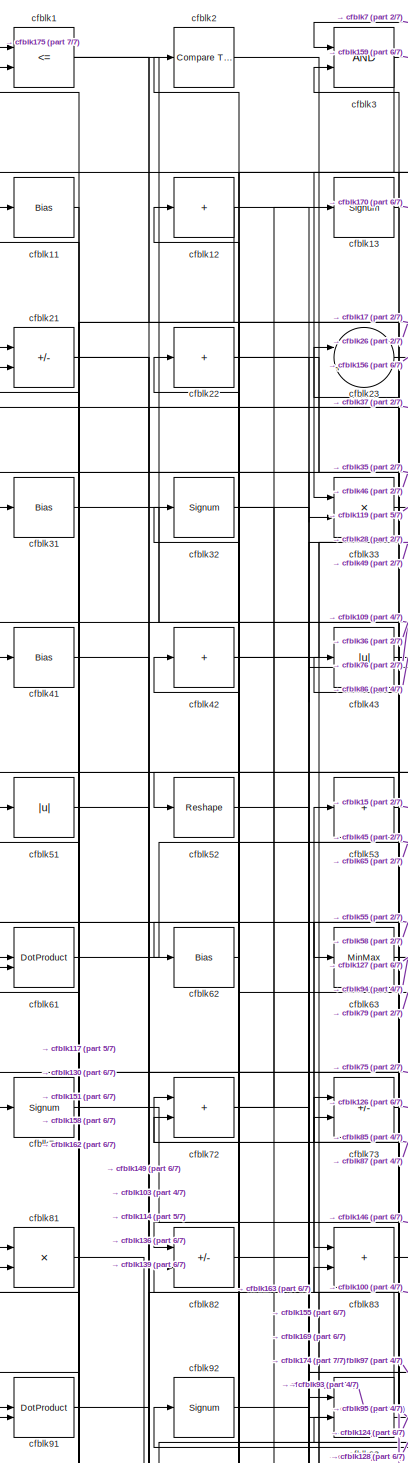
[diagram: root canvas - part 1/7, top left region]
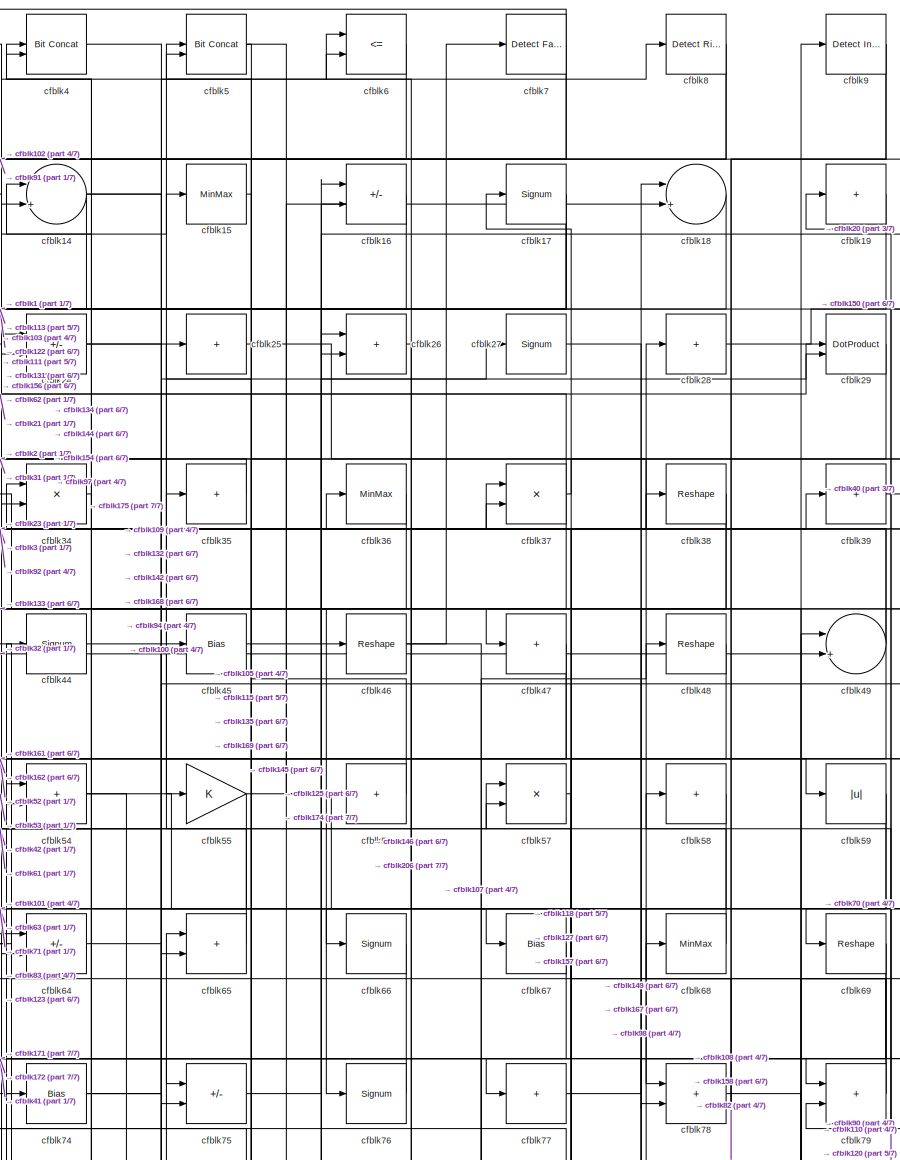
[diagram: root canvas - part 2/7, top center region]
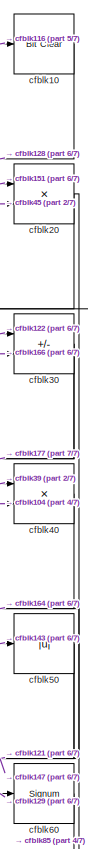
[diagram: root canvas - part 3/7, top right region]
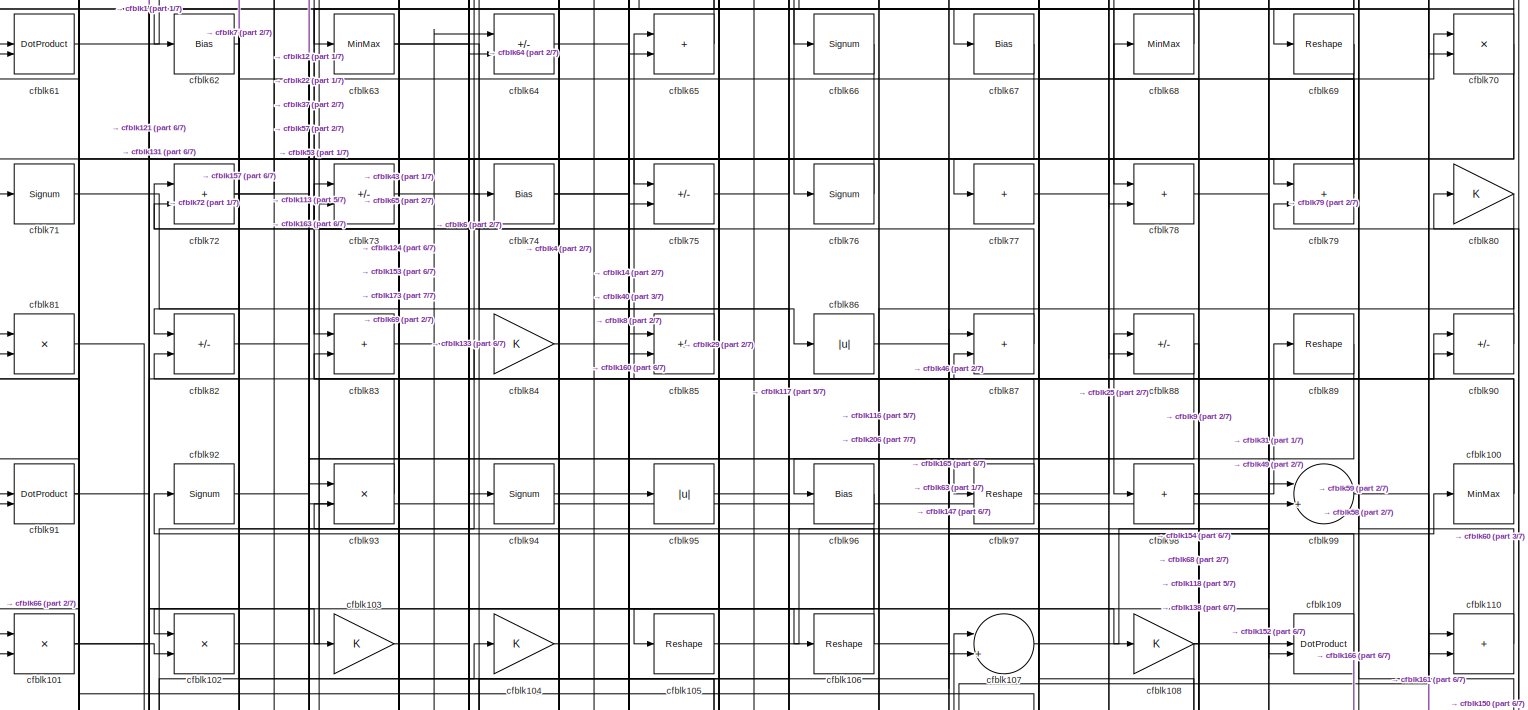
[diagram: root canvas - part 4/7, full width, middle band]
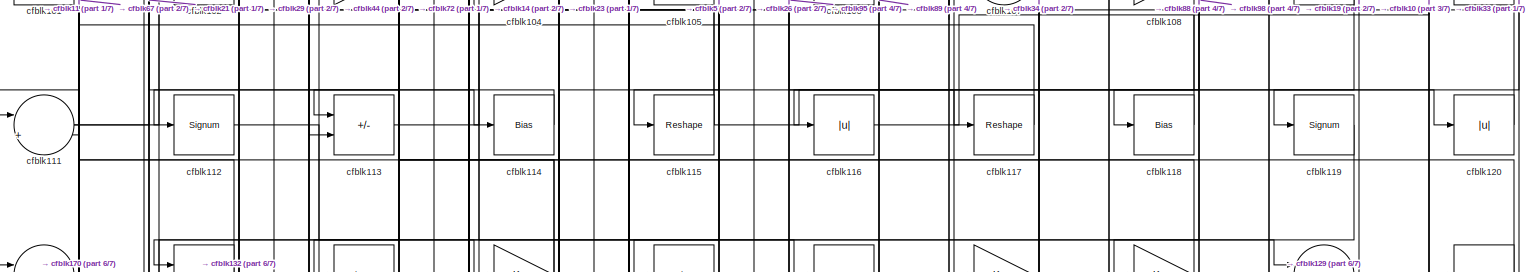
[diagram: root canvas - part 5/7, full width, middle band]
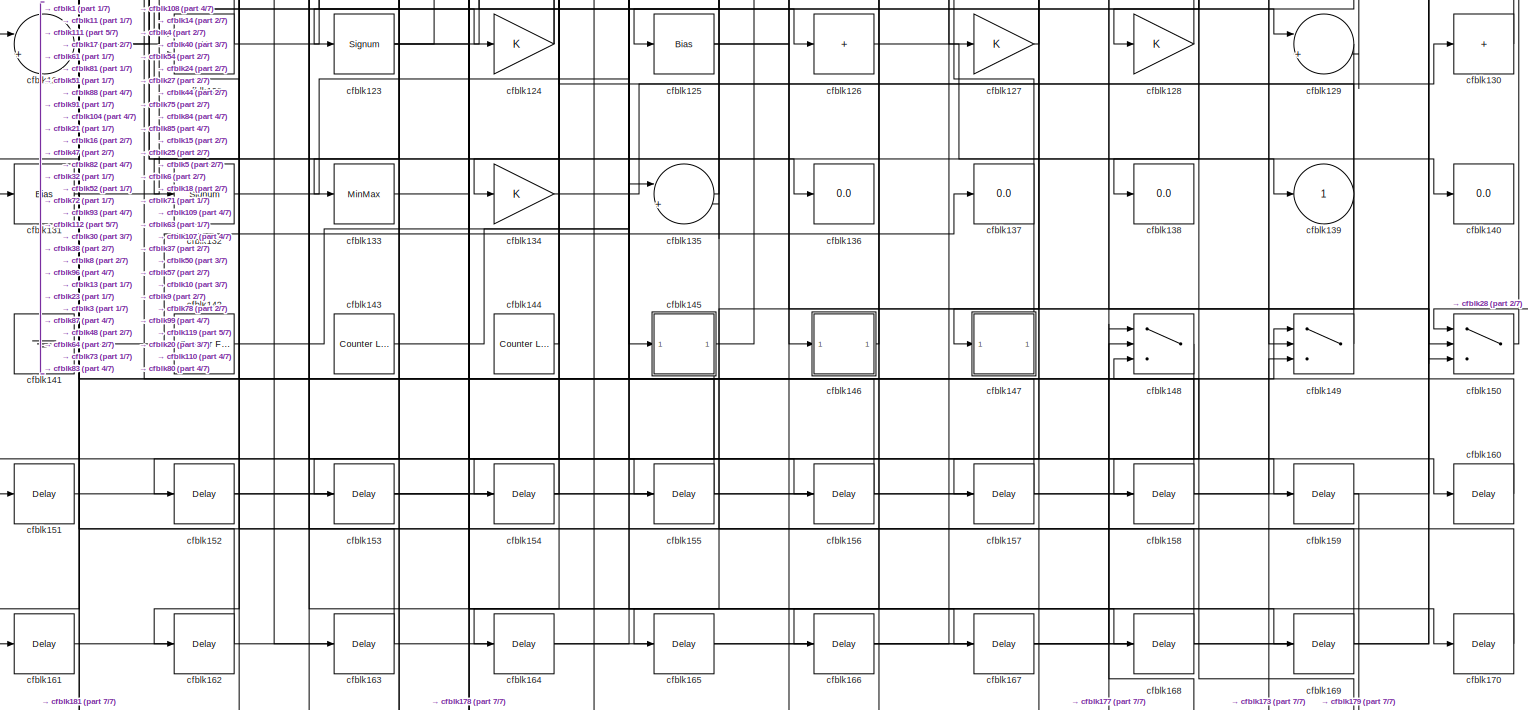
[diagram: root canvas - part 6/7, full width, bottom band]
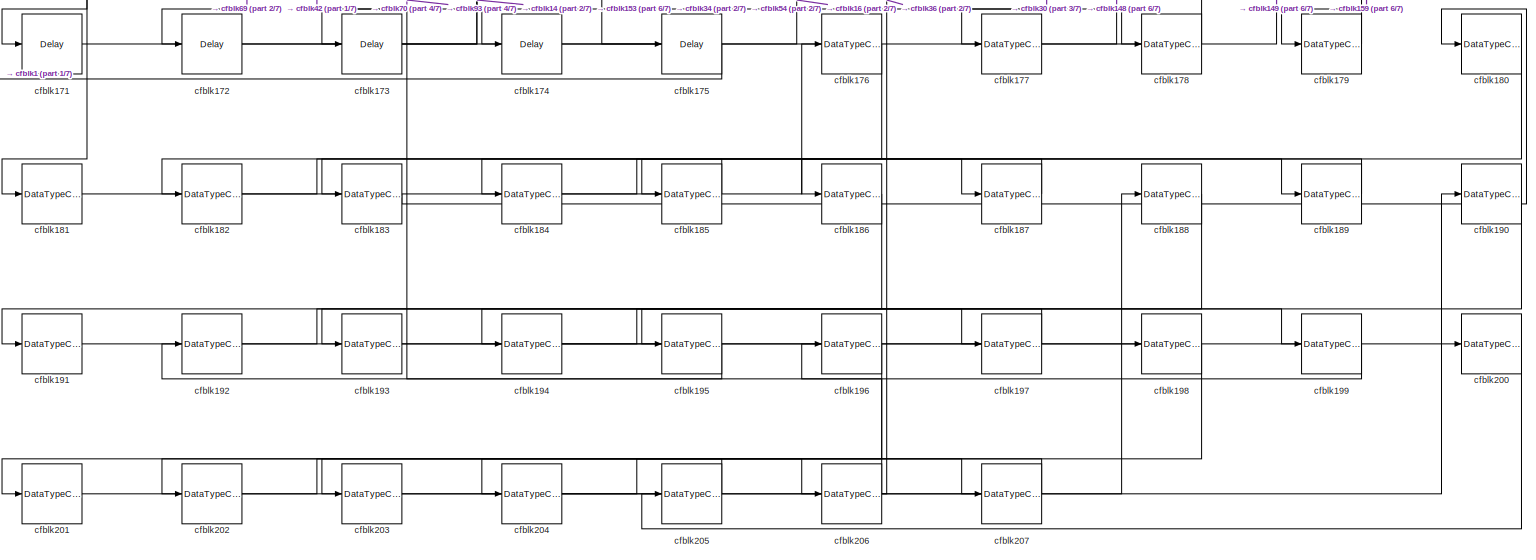
[diagram: root canvas - part 7/7, full width, bottom band]
MODEL slx_54df7357cd2f
KIND model
CONFIG AbsTol = auto
CONFIG EnableMultiTasking = off
CONFIG FixedStep = auto
CONFIG MaxStep = auto
CONFIG MinStep = auto
CONFIG RelTol = 1e-3
CONFIG SampleTimeConstraint = Unconstrained
CONFIG SolverName = VariableStepAuto
CONFIG StartTime = 0.0
CONFIG StopTime = 10.0
BLOCK [RelationalOperator] cfblk1
  InputSameDT = off
  Operator = <=
  OutDataTypeStr = boolean
BLOCK [Reference] cfblk10  REF=simulink/Logic and Bit
Operations/Bit Clear
  LibrarySourceBlock = hdlsllib/Logic and Bit\nOperations/Bit Clear
  SourceBlock = simulink/Logic and Bit\nOperations/Bit Clear
  SourceType = Bit Clear
BLOCK [MinMax] cfblk100
BLOCK [Product] cfblk101
  Inputs = */
  RndMeth = Zero
  SaturateOnIntegerOverflow = on
BLOCK [Product] cfblk102
  Inputs = */
  RndMeth = Zero
  SaturateOnIntegerOverflow = on
BLOCK [Gain] cfblk103
BLOCK [Gain] cfblk104
BLOCK [Reshape] cfblk105
BLOCK [Reshape] cfblk106
BLOCK [Sum] cfblk107
  Inputs = |++
BLOCK [Gain] cfblk108
BLOCK [DotProduct] cfblk109
  OutDataTypeStr = Inherit: Inherit via internal rule
BLOCK [Bias] cfblk11
  Bias = 0.0
  SaturateOnIntegerOverflow = off
BLOCK [Sum] cfblk110
  IconShape = rectangular
BLOCK [Sum] cfblk111
  Inputs = |++
BLOCK [Signum] cfblk112
BLOCK [Sum] cfblk113
  IconShape = rectangular
  Inputs = +-
BLOCK [Bias] cfblk114
  Bias = 0.0
  SaturateOnIntegerOverflow = off
BLOCK [Reshape] cfblk115
BLOCK [Abs] cfblk116
  SaturateOnIntegerOverflow = off
BLOCK [Reshape] cfblk117
BLOCK [Bias] cfblk118
  Bias = 0.0
  SaturateOnIntegerOverflow = off
BLOCK [Signum] cfblk119
BLOCK [Sum] cfblk12
  IconShape = rectangular
  Inputs = +
BLOCK [Abs] cfblk120
  SaturateOnIntegerOverflow = off
BLOCK [Sum] cfblk121
  Inputs = |++
BLOCK [Product] cfblk122
  Inputs = */
  RndMeth = Zero
  SaturateOnIntegerOverflow = on
BLOCK [Signum] cfblk123
BLOCK [Gain] cfblk124
BLOCK [Bias] cfblk125
  Bias = 0.0
  SaturateOnIntegerOverflow = off
BLOCK [Sum] cfblk126
  IconShape = rectangular
  Inputs = +
BLOCK [Gain] cfblk127
BLOCK [Gain] cfblk128
BLOCK [Sum] cfblk129
  Inputs = |++
BLOCK [Signum] cfblk13
BLOCK [Sum] cfblk130
  IconShape = rectangular
  Inputs = +
BLOCK [Bias] cfblk131
  Bias = 0.0
  SaturateOnIntegerOverflow = off
BLOCK [Signum] cfblk132
BLOCK [MinMax] cfblk133
BLOCK [Gain] cfblk134
BLOCK [Sum] cfblk135
  Inputs = |++
BLOCK [Display] cfblk136
  Decimation = 1
BLOCK [Display] cfblk137
  Decimation = 1
BLOCK [Display] cfblk138
  Decimation = 1
BLOCK [Outport] cfblk139
  VectorParamsAs1DForOutWhenUnconnected = off
BLOCK [Sum] cfblk14
  Inputs = |++
BLOCK [Display] cfblk140
  Decimation = 1
BLOCK [Ground] cfblk141
BLOCK [Reference] cfblk142  REF=hdlsllib/Sources/Counter
Free-Running
  SourceBlock = hdlsllib/Sources/Counter\nFree-Running
  SourceType = Counter Free-Running
BLOCK [Reference] cfblk143  REF=hdlsllib/Sources/Counter
Limited
  SourceBlock = hdlsllib/Sources/Counter\nLimited
  SourceType = Counter Limited
BLOCK [Reference] cfblk144  REF=hdlsllib/Sources/Counter
Limited
  SourceBlock = hdlsllib/Sources/Counter\nLimited
  SourceType = Counter Limited
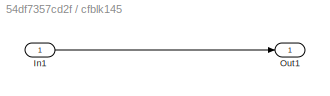
BLOCK [SubSystem] cfblk145
  LibrarySourceBlock = hdlsllib/Ports &\nSubsystems/Subsystem
BLOCK [Inport] cfblk145/In1
BLOCK [Outport] cfblk145/Out1
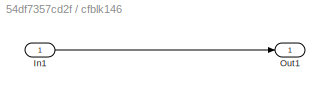
BLOCK [SubSystem] cfblk146
  LibrarySourceBlock = hdlsllib/Ports &\nSubsystems/Subsystem
BLOCK [Inport] cfblk146/In1
BLOCK [Outport] cfblk146/Out1
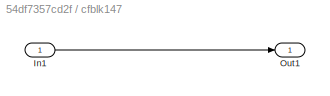
BLOCK [SubSystem] cfblk147
  LibrarySourceBlock = hdlsllib/Ports &\nSubsystems/Subsystem
BLOCK [Inport] cfblk147/In1
BLOCK [Outport] cfblk147/Out1
BLOCK [Switch] cfblk148
  InputSameDT = off
  SaturateOnIntegerOverflow = off
BLOCK [Switch] cfblk149
  InputSameDT = off
  SaturateOnIntegerOverflow = off
BLOCK [MinMax] cfblk15
BLOCK [Switch] cfblk150
  InputSameDT = off
  SaturateOnIntegerOverflow = off
BLOCK [Delay] cfblk151
  InputPortMap = u0
  SampleTime = 1
BLOCK [Delay] cfblk152
  InputPortMap = u0
  SampleTime = 1
BLOCK [Delay] cfblk153
  InputPortMap = u0
  SampleTime = 1
BLOCK [Delay] cfblk154
  InputPortMap = u0
  SampleTime = 1
BLOCK [Delay] cfblk155
  InputPortMap = u0
  SampleTime = 1
BLOCK [Delay] cfblk156
  InputPortMap = u0
  SampleTime = 1
BLOCK [Delay] cfblk157
  InputPortMap = u0
  SampleTime = 1
BLOCK [Delay] cfblk158
  InputPortMap = u0
  SampleTime = 1
BLOCK [Delay] cfblk159
  InputPortMap = u0
  SampleTime = 1
BLOCK [Sum] cfblk16
  IconShape = rectangular
  Inputs = +-
BLOCK [Delay] cfblk160
  InputPortMap = u0
  SampleTime = 1
BLOCK [Delay] cfblk161
  InputPortMap = u0
  SampleTime = 1
BLOCK [Delay] cfblk162
  InputPortMap = u0
  SampleTime = 1
BLOCK [Delay] cfblk163
  InputPortMap = u0
  SampleTime = 1
BLOCK [Delay] cfblk164
  InputPortMap = u0
  SampleTime = 1
BLOCK [Delay] cfblk165
  InputPortMap = u0
  SampleTime = 1
BLOCK [Delay] cfblk166
  InputPortMap = u0
  SampleTime = 1
BLOCK [Delay] cfblk167
  InputPortMap = u0
  SampleTime = 1
BLOCK [Delay] cfblk168
  InputPortMap = u0
  SampleTime = 1
BLOCK [Delay] cfblk169
  InputPortMap = u0
  SampleTime = 1
BLOCK [Signum] cfblk17
BLOCK [Delay] cfblk170
  InputPortMap = u0
  SampleTime = 1
BLOCK [Delay] cfblk171
  InputPortMap = u0
  SampleTime = 1
BLOCK [Delay] cfblk172
  InputPortMap = u0
  SampleTime = 1
BLOCK [Delay] cfblk173
  InputPortMap = u0
  SampleTime = 1
BLOCK [Delay] cfblk174
  InputPortMap = u0
  SampleTime = 1
BLOCK [Delay] cfblk175
  InputPortMap = u0
  SampleTime = 1
BLOCK [DataTypeConversion] cfblk176
  RndMeth = Floor
  SaturateOnIntegerOverflow = off
BLOCK [DataTypeConversion] cfblk177
  OutDataTypeStr = uint8
  RndMeth = Floor
  SaturateOnIntegerOverflow = off
BLOCK [DataTypeConversion] cfblk178
  OutDataTypeStr = uint8
  RndMeth = Floor
  SaturateOnIntegerOverflow = off
BLOCK [DataTypeConversion] cfblk179
  OutDataTypeStr = uint8
  RndMeth = Floor
  SaturateOnIntegerOverflow = off
BLOCK [Sum] cfblk18
  Inputs = |++
BLOCK [DataTypeConversion] cfblk180
  RndMeth = Floor
  SaturateOnIntegerOverflow = off
BLOCK [DataTypeConversion] cfblk181
  OutDataTypeStr = uint8
  RndMeth = Floor
  SaturateOnIntegerOverflow = off
BLOCK [DataTypeConversion] cfblk182
  RndMeth = Floor
  SaturateOnIntegerOverflow = off
BLOCK [DataTypeConversion] cfblk183
  OutDataTypeStr = uint8
  RndMeth = Floor
  SaturateOnIntegerOverflow = off
BLOCK [DataTypeConversion] cfblk184
  RndMeth = Floor
  SaturateOnIntegerOverflow = off
BLOCK [DataTypeConversion] cfblk185
  OutDataTypeStr = uint8
  RndMeth = Floor
  SaturateOnIntegerOverflow = off
BLOCK [DataTypeConversion] cfblk186
  RndMeth = Floor
  SaturateOnIntegerOverflow = off
BLOCK [DataTypeConversion] cfblk187
  OutDataTypeStr = uint8
  RndMeth = Floor
  SaturateOnIntegerOverflow = off
BLOCK [DataTypeConversion] cfblk188
  RndMeth = Floor
  SaturateOnIntegerOverflow = off
BLOCK [DataTypeConversion] cfblk189
  OutDataTypeStr = uint8
  RndMeth = Floor
  SaturateOnIntegerOverflow = off
BLOCK [Sum] cfblk19
  IconShape = rectangular
  Inputs = +
BLOCK [DataTypeConversion] cfblk190
  RndMeth = Floor
  SaturateOnIntegerOverflow = off
BLOCK [DataTypeConversion] cfblk191
  OutDataTypeStr = uint8
  RndMeth = Floor
  SaturateOnIntegerOverflow = off
BLOCK [DataTypeConversion] cfblk192
  RndMeth = Floor
  SaturateOnIntegerOverflow = off
BLOCK [DataTypeConversion] cfblk193
  OutDataTypeStr = uint8
  RndMeth = Floor
  SaturateOnIntegerOverflow = off
BLOCK [DataTypeConversion] cfblk194
  RndMeth = Floor
  SaturateOnIntegerOverflow = off
BLOCK [DataTypeConversion] cfblk195
  OutDataTypeStr = uint8
  RndMeth = Floor
  SaturateOnIntegerOverflow = off
BLOCK [DataTypeConversion] cfblk196
  RndMeth = Floor
  SaturateOnIntegerOverflow = off
BLOCK [DataTypeConversion] cfblk197
  OutDataTypeStr = uint8
  RndMeth = Floor
  SaturateOnIntegerOverflow = off
BLOCK [DataTypeConversion] cfblk198
  RndMeth = Floor
  SaturateOnIntegerOverflow = off
BLOCK [DataTypeConversion] cfblk199
  OutDataTypeStr = uint8
  RndMeth = Floor
  SaturateOnIntegerOverflow = off
BLOCK [Reference] cfblk2  REF=hdlsllib/Logic and Bit
Operations/Compare
To Constant
  SourceBlock = hdlsllib/Logic and Bit\nOperations/Compare\nTo Constant
  SourceType = Compare To Constant
BLOCK [Product] cfblk20
  Inputs = */
  RndMeth = Zero
  SaturateOnIntegerOverflow = on
BLOCK [DataTypeConversion] cfblk200
  RndMeth = Floor
  SaturateOnIntegerOverflow = off
BLOCK [DataTypeConversion] cfblk201
  OutDataTypeStr = uint8
  RndMeth = Floor
  SaturateOnIntegerOverflow = off
BLOCK [DataTypeConversion] cfblk202
  RndMeth = Floor
  SaturateOnIntegerOverflow = off
BLOCK [DataTypeConversion] cfblk203
  OutDataTypeStr = uint8
  RndMeth = Floor
  SaturateOnIntegerOverflow = off
BLOCK [DataTypeConversion] cfblk204
  RndMeth = Floor
  SaturateOnIntegerOverflow = off
BLOCK [DataTypeConversion] cfblk205
  OutDataTypeStr = uint8
  RndMeth = Floor
  SaturateOnIntegerOverflow = off
BLOCK [DataTypeConversion] cfblk206
  RndMeth = Floor
  SaturateOnIntegerOverflow = off
BLOCK [DataTypeConversion] cfblk207
  OutDataTypeStr = uint8
  RndMeth = Floor
  SaturateOnIntegerOverflow = off
BLOCK [Sum] cfblk21
  IconShape = rectangular
  Inputs = +-
BLOCK [Sum] cfblk22
  IconShape = rectangular
  Inputs = +
BLOCK [Sum] cfblk23
  Inputs = |++
BLOCK [Sum] cfblk24
  IconShape = rectangular
  Inputs = +-
BLOCK [Sum] cfblk25
  IconShape = rectangular
  Inputs = +
BLOCK [Sum] cfblk26
  IconShape = rectangular
BLOCK [Signum] cfblk27
BLOCK [Sum] cfblk28
  IconShape = rectangular
  Inputs = +
BLOCK [DotProduct] cfblk29
  OutDataTypeStr = Inherit: Inherit via internal rule
BLOCK [Logic] cfblk3
  AllPortsSameDT = off
  OutDataTypeStr = boolean
BLOCK [Sum] cfblk30
  IconShape = rectangular
  Inputs = +-
BLOCK [Bias] cfblk31
  Bias = 0.0
  SaturateOnIntegerOverflow = off
BLOCK [Signum] cfblk32
BLOCK [Product] cfblk33
  Inputs = */
  RndMeth = Zero
  SaturateOnIntegerOverflow = on
BLOCK [Product] cfblk34
  Inputs = */
  RndMeth = Zero
  SaturateOnIntegerOverflow = on
BLOCK [Sum] cfblk35
  IconShape = rectangular
  Inputs = +
BLOCK [MinMax] cfblk36
BLOCK [Product] cfblk37
  Inputs = */
  RndMeth = Zero
  SaturateOnIntegerOverflow = on
BLOCK [Reshape] cfblk38
BLOCK [Sum] cfblk39
  IconShape = rectangular
  Inputs = +
BLOCK [Reference] cfblk4  REF=hdlsllib/Logic and Bit
Operations/Bit Concat
  SourceBlock = hdlsllib/Logic and Bit\nOperations/Bit Concat
  SourceType = Bit Concat
BLOCK [Product] cfblk40
  Inputs = */
  RndMeth = Zero
  SaturateOnIntegerOverflow = on
BLOCK [Bias] cfblk41
  Bias = 0.0
  SaturateOnIntegerOverflow = off
BLOCK [Sum] cfblk42
  IconShape = rectangular
  Inputs = +
BLOCK [Abs] cfblk43
  SaturateOnIntegerOverflow = off
BLOCK [Signum] cfblk44
BLOCK [Bias] cfblk45
  Bias = 0.0
  SaturateOnIntegerOverflow = off
BLOCK [Reshape] cfblk46
BLOCK [Sum] cfblk47
  IconShape = rectangular
  Inputs = +
BLOCK [Reshape] cfblk48
BLOCK [Sum] cfblk49
  Inputs = |++
BLOCK [Reference] cfblk5  REF=hdlsllib/Logic and Bit
Operations/Bit Concat
  SourceBlock = hdlsllib/Logic and Bit\nOperations/Bit Concat
  SourceType = Bit Concat
BLOCK [Abs] cfblk50
  SaturateOnIntegerOverflow = off
BLOCK [Abs] cfblk51
  SaturateOnIntegerOverflow = off
BLOCK [Reshape] cfblk52
BLOCK [Sum] cfblk53
  IconShape = rectangular
  Inputs = +
BLOCK [Sum] cfblk54
  IconShape = rectangular
BLOCK [Gain] cfblk55
BLOCK [Sum] cfblk56
  IconShape = rectangular
  Inputs = +
BLOCK [Product] cfblk57
  Inputs = */
  RndMeth = Zero
  SaturateOnIntegerOverflow = on
BLOCK [Sum] cfblk58
  IconShape = rectangular
  Inputs = +
BLOCK [Abs] cfblk59
  SaturateOnIntegerOverflow = off
BLOCK [RelationalOperator] cfblk6
  InputSameDT = off
  Operator = <=
  OutDataTypeStr = boolean
BLOCK [Signum] cfblk60
BLOCK [DotProduct] cfblk61
  OutDataTypeStr = Inherit: Inherit via internal rule
BLOCK [Bias] cfblk62
  Bias = 0.0
  SaturateOnIntegerOverflow = off
BLOCK [MinMax] cfblk63
BLOCK [Sum] cfblk64
  IconShape = rectangular
  Inputs = +-
BLOCK [Sum] cfblk65
  IconShape = rectangular
BLOCK [Signum] cfblk66
BLOCK [Bias] cfblk67
  Bias = 0.0
  SaturateOnIntegerOverflow = off
BLOCK [MinMax] cfblk68
BLOCK [Reshape] cfblk69
BLOCK [Reference] cfblk7  REF=hdlsllib/Logic and Bit
Operations/Detect Fall
Nonpositive
  SourceBlock = hdlsllib/Logic and Bit\nOperations/Detect Fall\nNonpositive
  SourceType = Detect Fall Nonpositive
BLOCK [Product] cfblk70
  Inputs = */
  RndMeth = Zero
  SaturateOnIntegerOverflow = on
BLOCK [Signum] cfblk71
BLOCK [Sum] cfblk72
  IconShape = rectangular
BLOCK [Sum] cfblk73
  IconShape = rectangular
  Inputs = +-
BLOCK [Bias] cfblk74
  Bias = 0.0
  SaturateOnIntegerOverflow = off
BLOCK [Sum] cfblk75
  IconShape = rectangular
  Inputs = +-
BLOCK [Signum] cfblk76
BLOCK [Sum] cfblk77
  IconShape = rectangular
  Inputs = +
BLOCK [Sum] cfblk78
  IconShape = rectangular
BLOCK [Sum] cfblk79
  IconShape = rectangular
BLOCK [Reference] cfblk8  REF=hdlsllib/Logic and Bit
Operations/Detect Rise
Nonnegative
  SourceBlock = hdlsllib/Logic and Bit\nOperations/Detect Rise\nNonnegative
  SourceType = Detect Rise Nonnegative
BLOCK [Gain] cfblk80
BLOCK [Product] cfblk81
  Inputs = */
  RndMeth = Zero
  SaturateOnIntegerOverflow = on
BLOCK [Sum] cfblk82
  IconShape = rectangular
  Inputs = +-
BLOCK [Sum] cfblk83
  IconShape = rectangular
BLOCK [Gain] cfblk84
BLOCK [Sum] cfblk85
  IconShape = rectangular
  Inputs = +-
BLOCK [Abs] cfblk86
  SaturateOnIntegerOverflow = off
BLOCK [Sum] cfblk87
  IconShape = rectangular
BLOCK [Sum] cfblk88
  IconShape = rectangular
  Inputs = +-
BLOCK [Reshape] cfblk89
BLOCK [Reference] cfblk9  REF=simulink/Logic and Bit
Operations/Detect
Increase
  LibrarySourceBlock = hdlsllib/Logic and Bit\nOperations/Detect\nIncrease
  SourceBlock = simulink/Logic and Bit\nOperations/Detect\nIncrease
  SourceType = Detect Increase
BLOCK [Sum] cfblk90
  IconShape = rectangular
  Inputs = +-
BLOCK [DotProduct] cfblk91
  OutDataTypeStr = Inherit: Inherit via internal rule
BLOCK [Signum] cfblk92
BLOCK [Product] cfblk93
  Inputs = */
  RndMeth = Zero
  SaturateOnIntegerOverflow = on
BLOCK [Signum] cfblk94
BLOCK [Abs] cfblk95
  SaturateOnIntegerOverflow = off
BLOCK [Bias] cfblk96
  Bias = 0.0
  SaturateOnIntegerOverflow = off
BLOCK [Reshape] cfblk97
BLOCK [Sum] cfblk98
  IconShape = rectangular
  Inputs = +
BLOCK [Sum] cfblk99
  Inputs = |++
NET cfblk100:1 -> cfblk43:1, cfblk65:1
NET cfblk101:1 -> cfblk102:2, cfblk106:1
LINE cfblk102:1 -> cfblk84:1
LINE cfblk103:1 -> cfblk6:1
LINE cfblk104:1 -> cfblk40:2
LINE cfblk105:1 -> cfblk9:1
NET cfblk106:1 -> cfblk100:1, cfblk72:1
LINE cfblk107:1 -> cfblk49:1
NET cfblk108:1 -> cfblk154:1, cfblk68:1, cfblk70:1
NET cfblk109:1 -> cfblk166:1, cfblk92:1
LINE cfblk10:1 -> cfblk128:1
LINE cfblk110:1 -> cfblk58:1
NET cfblk111:1 -> cfblk29:2, cfblk44:1
LINE cfblk112:1 -> cfblk129:1
LINE cfblk113:1 -> cfblk26:1
LINE cfblk114:1 -> cfblk112:1
NET cfblk115:1 -> cfblk120:1, cfblk23:1, cfblk72:2
LINE cfblk116:1 -> cfblk10:1
LINE cfblk117:1 -> cfblk11:1
LINE cfblk118:1 -> cfblk34:1
LINE cfblk119:1 -> cfblk132:1
LINE cfblk11:1 -> cfblk151:1
LINE cfblk120:1 -> cfblk19:1
NET cfblk121:1 -> cfblk124:1, cfblk88:1
NET cfblk122:1 -> cfblk21:1, cfblk30:1
NET cfblk123:1 -> cfblk167:1, cfblk48:1, cfblk64:1
NET cfblk124:1 -> cfblk73:2, cfblk83:2
NET cfblk125:1 -> cfblk150:2, cfblk18:2
LINE cfblk126:1 -> cfblk140:1
LINE cfblk127:1 -> cfblk37:1
LINE cfblk128:1 -> cfblk73:1
LINE cfblk129:1 -> cfblk165:1
NET cfblk12:1 -> cfblk61:1, cfblk97:1
LINE cfblk130:1 -> cfblk81:1
LINE cfblk131:1 -> cfblk104:1
LINE cfblk132:1 -> cfblk75:2
LINE cfblk133:1 -> cfblk87:2
LINE cfblk134:1 -> cfblk130:1
LINE cfblk135:1 -> cfblk25:1
LINE cfblk13:1 -> cfblk170:1
LINE cfblk141:1 -> cfblk137:1
LINE cfblk142:1 -> cfblk27:1
LINE cfblk143:1 -> cfblk50:1
LINE cfblk144:1 -> cfblk4:1
LINE cfblk145/In1:1 -> cfblk145/Out1:1
NET cfblk145:1 -> cfblk152:1, cfblk16:2
LINE cfblk146/In1:1 -> cfblk146/Out1:1
LINE cfblk146:1 -> cfblk6:2
LINE cfblk147/In1:1 -> cfblk147/Out1:1
LINE cfblk147:1 -> cfblk107:1
LINE cfblk148:1 -> cfblk181:1
LINE cfblk149:1 -> cfblk14:1
NET cfblk14:1 -> cfblk113:1, cfblk59:1, cfblk70:2
LINE cfblk150:1 -> cfblk80:1
LINE cfblk151:1 -> cfblk20:1
LINE cfblk152:1 -> cfblk99:1
LINE cfblk153:1 -> cfblk178:1
LINE cfblk154:1 -> cfblk54:2
LINE cfblk155:1 -> cfblk81:2
LINE cfblk156:1 -> cfblk24:1
LINE cfblk157:1 -> cfblk82:2
LINE cfblk158:1 -> cfblk1:2
LINE cfblk159:1 -> cfblk179:1
LINE cfblk15:1 -> cfblk125:1
LINE cfblk160:1 -> cfblk85:1
LINE cfblk161:1 -> cfblk110:1
LINE cfblk162:1 -> cfblk61:2
LINE cfblk163:1 -> cfblk93:1
LINE cfblk164:1 -> cfblk135:1
LINE cfblk165:1 -> cfblk87:1
LINE cfblk166:1 -> cfblk30:2
LINE cfblk167:1 -> cfblk18:1
LINE cfblk168:1 -> cfblk122:2
LINE cfblk169:1 -> cfblk5:2
LINE cfblk16:1 -> cfblk122:1
LINE cfblk170:1 -> cfblk111:2
LINE cfblk171:1 -> cfblk14:2
LINE cfblk172:1 -> cfblk34:2
LINE cfblk173:1 -> cfblk149:3
LINE cfblk174:1 -> cfblk16:1
LINE cfblk175:1 -> cfblk1:1
LINE cfblk176:1 -> cfblk183:1
LINE cfblk177:1 -> cfblk148:1
LINE cfblk178:1 -> cfblk148:2
LINE cfblk179:1 -> cfblk148:3
NET cfblk17:1 -> cfblk131:1, cfblk41:1, cfblk62:1
LINE cfblk180:1 -> cfblk185:1
LINE cfblk181:1 -> cfblk176:1
LINE cfblk182:1 -> cfblk187:1
LINE cfblk183:1 -> cfblk180:1
LINE cfblk184:1 -> cfblk189:1
LINE cfblk185:1 -> cfblk182:1
LINE cfblk186:1 -> cfblk191:1
LINE cfblk187:1 -> cfblk184:1
LINE cfblk188:1 -> cfblk193:1
LINE cfblk189:1 -> cfblk186:1
LINE cfblk18:1 -> cfblk134:1
LINE cfblk190:1 -> cfblk195:1
LINE cfblk191:1 -> cfblk188:1
LINE cfblk192:1 -> cfblk197:1
LINE cfblk193:1 -> cfblk190:1
LINE cfblk194:1 -> cfblk199:1
LINE cfblk195:1 -> cfblk192:1
LINE cfblk196:1 -> cfblk201:1
LINE cfblk197:1 -> cfblk194:1
LINE cfblk198:1 -> cfblk203:1
LINE cfblk199:1 -> cfblk196:1
LINE cfblk19:1 -> cfblk24:2
NET cfblk1:1 -> cfblk103:1, cfblk26:2, cfblk76:1
LINE cfblk200:1 -> cfblk205:1
LINE cfblk201:1 -> cfblk198:1
LINE cfblk202:1 -> cfblk207:1
LINE cfblk203:1 -> cfblk200:1
LINE cfblk204:1 -> cfblk206:1
LINE cfblk205:1 -> cfblk202:1
NET cfblk206:1 -> cfblk36:1, cfblk93:2
LINE cfblk207:1 -> cfblk204:1
NET cfblk20:1 -> cfblk129:2, cfblk60:1
NET cfblk21:1 -> cfblk114:1, cfblk33:2
NET cfblk22:1 -> cfblk95:1, cfblk99:2
LINE cfblk23:1 -> cfblk156:1
NET cfblk24:1 -> cfblk168:1, cfblk55:1
LINE cfblk25:1 -> cfblk98:1
LINE cfblk26:1 -> cfblk66:1
LINE cfblk27:1 -> cfblk149:2
LINE cfblk28:1 -> cfblk150:1
LINE cfblk29:1 -> cfblk105:1
LINE cfblk2:1 -> cfblk46:1
NET cfblk30:1 -> cfblk121:2, cfblk177:1
LINE cfblk31:1 -> cfblk109:1
NET cfblk32:1 -> cfblk163:1, cfblk49:2
LINE cfblk33:1 -> cfblk119:1
LINE cfblk34:1 -> cfblk54:1
LINE cfblk35:1 -> cfblk31:1
LINE cfblk36:1 -> cfblk91:1
NET cfblk37:1 -> cfblk17:1, cfblk21:2, cfblk47:1
NET cfblk38:1 -> cfblk133:1, cfblk78:2
LINE cfblk39:1 -> cfblk40:1
NET cfblk3:1 -> cfblk159:1, cfblk33:1
LINE cfblk40:1 -> cfblk164:1
LINE cfblk41:1 -> cfblk75:1
NET cfblk42:1 -> cfblk174:1, cfblk28:1
LINE cfblk43:1 -> cfblk86:1
LINE cfblk44:1 -> cfblk145:1
LINE cfblk45:1 -> cfblk20:2
NET cfblk46:1 -> cfblk107:2, cfblk7:1
NET cfblk47:1 -> cfblk161:1, cfblk162:1
LINE cfblk48:1 -> cfblk77:1
NET cfblk49:1 -> cfblk23:2, cfblk3:2, cfblk52:1
LINE cfblk4:1 -> cfblk65:2
NET cfblk50:1 -> cfblk121:1, cfblk147:1
LINE cfblk51:1 -> cfblk139:1
LINE cfblk52:1 -> cfblk155:1
LINE cfblk53:1 -> cfblk15:1
NET cfblk54:1 -> cfblk175:1, cfblk67:1
NET cfblk55:1 -> cfblk63:1, cfblk78:1
LINE cfblk56:1 -> cfblk35:1
LINE cfblk57:1 -> cfblk157:1
LINE cfblk58:1 -> cfblk71:1
NET cfblk59:1 -> cfblk101:2, cfblk83:1
NET cfblk5:1 -> cfblk115:1, cfblk56:1
LINE cfblk60:1 -> cfblk85:2
LINE cfblk61:1 -> cfblk45:1
LINE cfblk62:1 -> cfblk32:1
NET cfblk63:1 -> cfblk127:1, cfblk94:1
LINE cfblk64:1 -> cfblk109:2
LINE cfblk65:1 -> cfblk42:1
LINE cfblk66:1 -> cfblk101:1
LINE cfblk67:1 -> cfblk111:1
LINE cfblk68:1 -> cfblk5:1
NET cfblk69:1 -> cfblk171:1, cfblk172:1
LINE cfblk6:1 -> cfblk135:2
NET cfblk70:1 -> cfblk173:1, cfblk69:1, cfblk88:2
LINE cfblk71:1 -> cfblk146:1
NET cfblk72:1 -> cfblk13:1, cfblk169:1
LINE cfblk73:1 -> cfblk126:1
NET cfblk74:1 -> cfblk38:1, cfblk39:1
LINE cfblk75:1 -> cfblk29:1
LINE cfblk76:1 -> cfblk74:1
LINE cfblk77:1 -> cfblk79:1
LINE cfblk78:1 -> cfblk150:3
NET cfblk79:1 -> cfblk2:1, cfblk57:2
NET cfblk7:1 -> cfblk102:1, cfblk3:1, cfblk91:2
LINE cfblk80:1 -> cfblk96:1
LINE cfblk81:1 -> cfblk149:1
LINE cfblk82:1 -> cfblk57:1
LINE cfblk83:1 -> cfblk108:1
LINE cfblk84:1 -> cfblk160:1
LINE cfblk85:1 -> cfblk22:1
LINE cfblk86:1 -> cfblk90:2
LINE cfblk87:1 -> cfblk12:1
NET cfblk88:1 -> cfblk113:2, cfblk138:1
LINE cfblk89:1 -> cfblk116:1
NET cfblk8:1 -> cfblk123:1, cfblk64:2
LINE cfblk90:1 -> cfblk79:2
NET cfblk91:1 -> cfblk136:1, cfblk51:1
LINE cfblk92:1 -> cfblk37:2
LINE cfblk93:1 -> cfblk53:1
LINE cfblk94:1 -> cfblk8:1
LINE cfblk95:1 -> cfblk117:1
LINE cfblk96:1 -> cfblk153:1
NET cfblk97:1 -> cfblk4:2, cfblk90:1
NET cfblk98:1 -> cfblk118:1, cfblk89:1
LINE cfblk99:1 -> cfblk110:2
NET cfblk9:1 -> cfblk158:1, cfblk82:1
note: NET lines group one-source signal fan-out (src -> all destinations, sorted); 1:1 wires keep LINE
